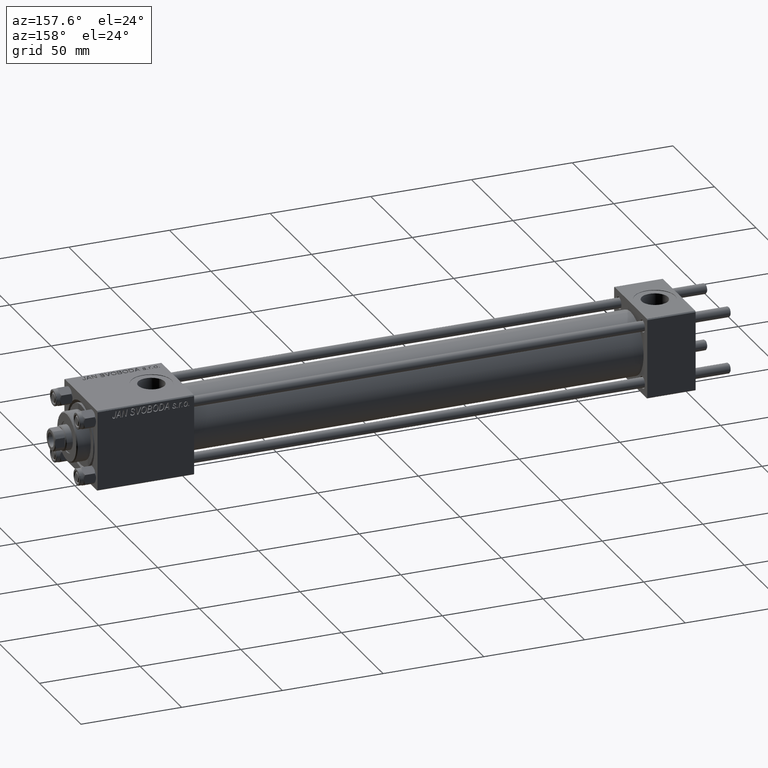
[diagram: clean part render]
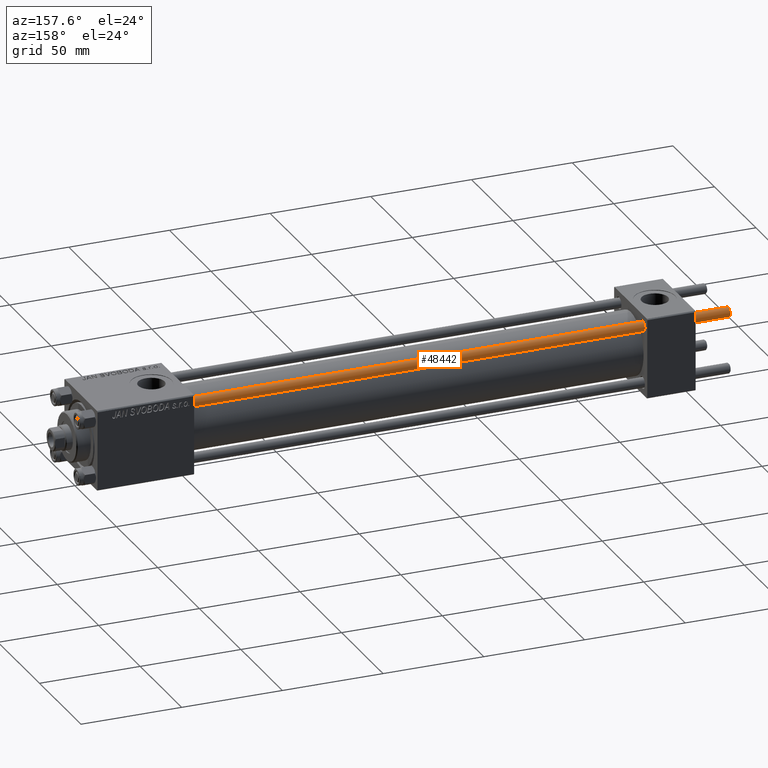
[diagram: same view with one face highlighted and labeled with its STEP entity id]
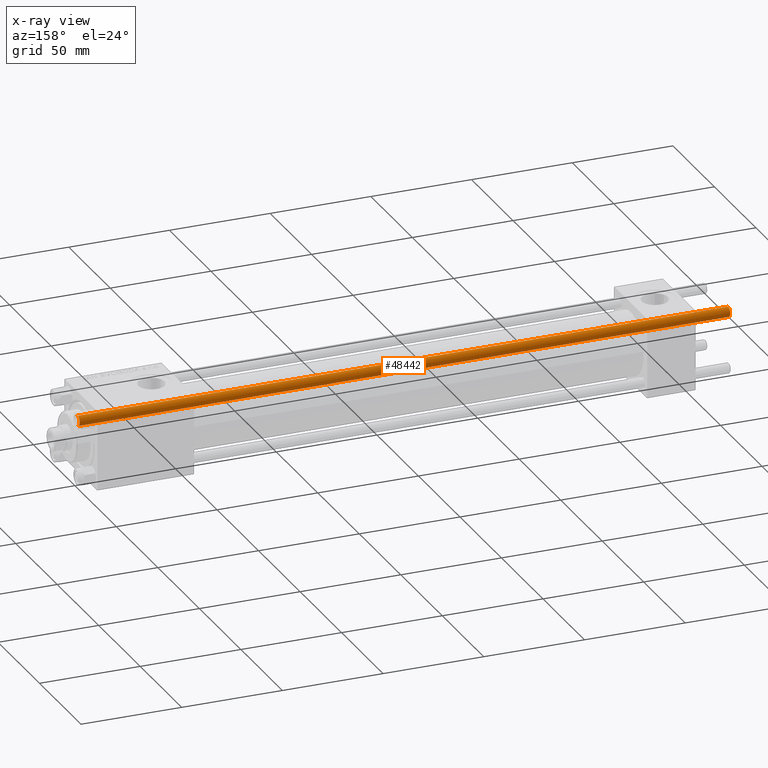
[diagram: x-ray of the same camera — body ghosted, the highlighted face saturated]
A machine part, auxiliary view. The second image highlights one B-rep face of the part: STEP entity #48442.
The next image is the same camera in x-ray: the body ghosted, the highlighted face saturated — about 0% of this face is hidden behind the body in this view.
In plain terms, the highlighted cylindrical surface (edge-blend (fillet) strip) has radius 2.5 mm, axis along (-1, -0, -0).
Its self-contained STEP definition (entity closure, byte-faithful):
#193 = CARTESIAN_POINT ( 'NONE',  ( -2.500000000000000000, 0.000000000000000000, 324.0000000000000000 ) ) ;
#927 = CARTESIAN_POINT ( 'NONE',  ( -2.500000000000000000, 0.000000000000000000, 323.5000000000000568 ) ) ;
#1013 = CARTESIAN_POINT ( 'NONE',  ( 2.500000000000000000, 3.061616997868383141E-16, 324.0000000000000000 ) ) ;
#1831 = EDGE_CURVE ( 'NONE', #47903, #14434, #45287, .T. ) ;
#2613 = FACE_OUTER_BOUND ( 'NONE', #5672, .T. ) ;
#2971 = ORIENTED_EDGE ( 'NONE', *, *, #1831, .T. ) ;
#4078 = ORIENTED_EDGE ( 'NONE', *, *, #45490, .T. ) ;
#5672 = EDGE_LOOP ( 'NONE', ( #2971, #4078, #19104, #39611 ) ) ;
#6697 = DIRECTION ( 'NONE',  ( 0.000000000000000000, 0.000000000000000000, -1.000000000000000000 ) ) ;
#7135 = CYLINDRICAL_SURFACE ( 'NONE', #45153, 2.500000000000000000 ) ;
#7741 = DIRECTION ( 'NONE',  ( -0.000000000000000000, -0.000000000000000000, -1.000000000000000000 ) ) ;
#11871 = VERTEX_POINT ( 'NONE', #47095 ) ;
#12737 = DIRECTION ( 'NONE',  ( 1.000000000000000000, 0.000000000000000000, 0.000000000000000000 ) ) ;
#12832 = DIRECTION ( 'NONE',  ( -0.000000000000000000, -0.000000000000000000, -1.000000000000000000 ) ) ;
#14434 = VERTEX_POINT ( 'NONE', #44470 ) ;
#16113 = LINE ( 'NONE', #1013, #30574 ) ;
#18197 = DIRECTION ( 'NONE',  ( -1.000000000000000000, 0.000000000000000000, 0.000000000000000000 ) ) ;
#19104 = ORIENTED_EDGE ( 'NONE', *, *, #26800, .T. ) ;
#20159 = CIRCLE ( 'NONE', #20946, 2.500000000000000000 ) ;
#20946 = AXIS2_PLACEMENT_3D ( 'NONE', #36393, #47234, #12737 ) ;
#21949 = AXIS2_PLACEMENT_3D ( 'NONE', #22289, #6697, #29115 ) ;
#22289 = CARTESIAN_POINT ( 'NONE',  ( 0.000000000000000000, 0.000000000000000000, 323.5000000000000568 ) ) ;
#26800 = EDGE_CURVE ( 'NONE', #44937, #11871, #20159, .T. ) ;
#27318 = VECTOR ( 'NONE', #7741, 1000.000000000000000 ) ;
#27524 = EDGE_CURVE ( 'NONE', #47903, #11871, #42234, .T. ) ;
#29115 = DIRECTION ( 'NONE',  ( 1.000000000000000000, 0.000000000000000000, 0.000000000000000000 ) ) ;
#29800 = CARTESIAN_POINT ( 'NONE',  ( 0.000000000000000000, 0.000000000000000000, 324.0000000000000000 ) ) ;
#30574 = VECTOR ( 'NONE', #12832, 1000.000000000000000 ) ;
#36393 = CARTESIAN_POINT ( 'NONE',  ( 0.000000000000000000, 0.000000000000000000, 0.4999999999998894218 ) ) ;
#37334 = DIRECTION ( 'NONE',  ( -0.000000000000000000, -0.000000000000000000, -1.000000000000000000 ) ) ;
#39611 = ORIENTED_EDGE ( 'NONE', *, *, #27524, .F. ) ;
#42234 = LINE ( 'NONE', #193, #27318 ) ;
#42933 = CARTESIAN_POINT ( 'NONE',  ( 2.500000000000000000, 3.061616997868383141E-16, 0.4999999999998894218 ) ) ;
#44470 = CARTESIAN_POINT ( 'NONE',  ( 2.500000000000000000, 3.061616997868383141E-16, 323.5000000000000568 ) ) ;
#44937 = VERTEX_POINT ( 'NONE', #42933 ) ;
#45153 = AXIS2_PLACEMENT_3D ( 'NONE', #29800, #37334, #18197 ) ;
#45287 = CIRCLE ( 'NONE', #21949, 2.500000000000000000 ) ;
#45490 = EDGE_CURVE ( 'NONE', #14434, #44937, #16113, .T. ) ;
#47095 = CARTESIAN_POINT ( 'NONE',  ( -2.500000000000000000, 0.000000000000000000, 0.4999999999998894218 ) ) ;
#47234 = DIRECTION ( 'NONE',  ( -0.000000000000000000, -0.000000000000000000, 1.000000000000000000 ) ) ;
#47903 = VERTEX_POINT ( 'NONE', #927 ) ;
#48442 = ADVANCED_FACE ( 'NONE', ( #2613 ), #7135, .T. ) ;